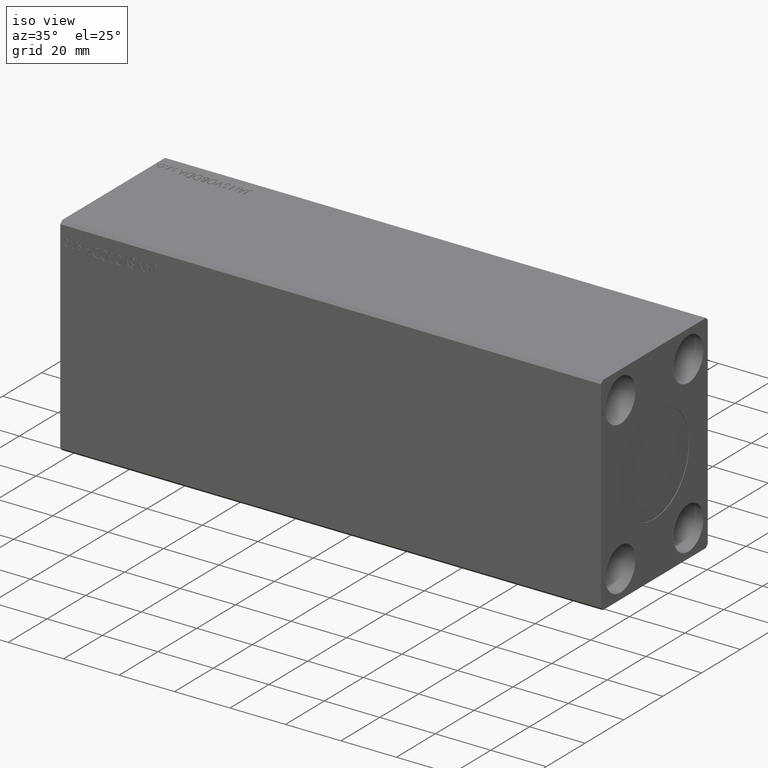
[diagram: clean part render]
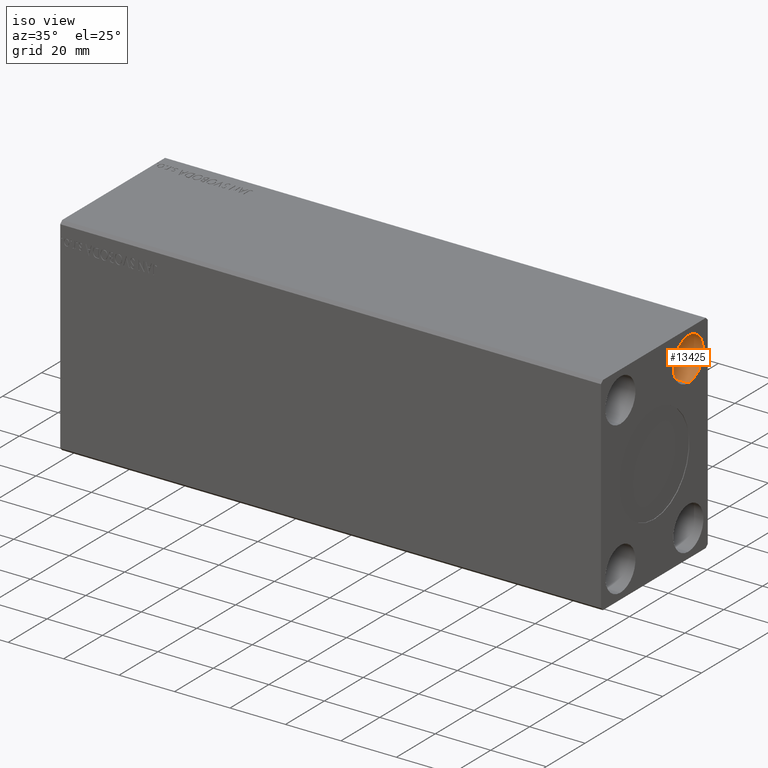
[diagram: same view with one face highlighted and labeled with its STEP entity id]
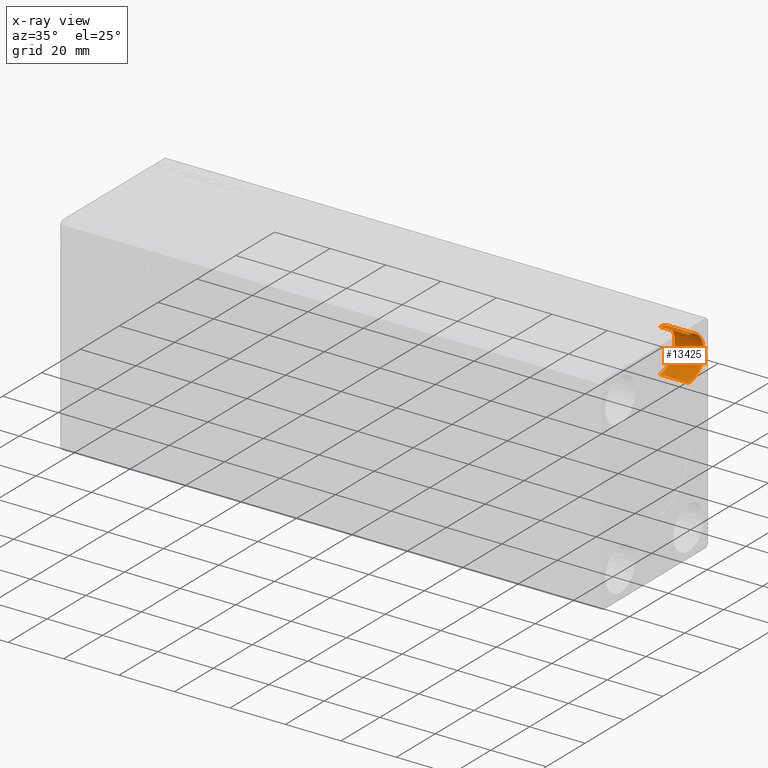
[diagram: x-ray of the same camera — body ghosted, the highlighted face saturated]
A machine part, iso view. The second image highlights one B-rep face of the part: STEP entity #13425.
The next image is the same camera in x-ray: the body ghosted, the highlighted face saturated — about 0% of this face is hidden behind the body in this view.
In plain terms, the highlighted cylindrical surface (edge-blend (fillet) strip) has radius 7.75 mm, axis along (1, -0, -0).
Its self-contained STEP definition (entity closure, byte-faithful):
#790 = VECTOR ( 'NONE', #34270, 1000.000000000000000 ) ;
#2088 = ORIENTED_EDGE ( 'NONE', *, *, #2379, .T. ) ;
#2379 = EDGE_CURVE ( 'NONE', #11078, #5587, #9123, .T. ) ;
#2627 = AXIS2_PLACEMENT_3D ( 'NONE', #11138, #24289, #34620 ) ;
#2953 = AXIS2_PLACEMENT_3D ( 'NONE', #19594, #15702, #32726 ) ;
#5459 = DIRECTION ( 'NONE',  ( 1.000000000000000000, -0.000000000000000000, -0.000000000000000000 ) ) ;
#5587 = VERTEX_POINT ( 'NONE', #31514 ) ;
#8328 = DIRECTION ( 'NONE',  ( 0.000000000000000000, 0.000000000000000000, -1.000000000000000000 ) ) ;
#8484 = EDGE_CURVE ( 'NONE', #5587, #26682, #37356, .T. ) ;
#8827 = CIRCLE ( 'NONE', #2627, 7.750000000000003553 ) ;
#9123 = LINE ( 'NONE', #28304, #20675 ) ;
#11078 = VERTEX_POINT ( 'NONE', #37678 ) ;
#11138 = CARTESIAN_POINT ( 'NONE',  ( 184.6699999999999875, 17.50000000000000000, 27.50000000000000000 ) ) ;
#11426 = CARTESIAN_POINT ( 'NONE',  ( 184.6699999999999875, 17.50000000000000000, 35.25000000000000000 ) ) ;
#11996 = CARTESIAN_POINT ( 'NONE',  ( 184.6699999999999875, 17.50000000000000000, 27.50000000000000000 ) ) ;
#13425 = ADVANCED_FACE ( 'NONE', ( #31599 ), #28154, .F. ) ;
#13585 = CARTESIAN_POINT ( 'NONE',  ( 184.6699999999999875, 17.50000000000000000, 35.25000000000000000 ) ) ;
#14028 = ORIENTED_EDGE ( 'NONE', *, *, #23595, .F. ) ;
#14537 = EDGE_LOOP ( 'NONE', ( #41887, #14028, #2088, #35478 ) ) ;
#15702 = DIRECTION ( 'NONE',  ( 1.000000000000000000, -0.000000000000000000, -0.000000000000000000 ) ) ;
#19594 = CARTESIAN_POINT ( 'NONE',  ( 195.0000000000000000, 17.50000000000000000, 27.50000000000000000 ) ) ;
#20675 = VECTOR ( 'NONE', #5459, 1000.000000000000000 ) ;
#22122 = DIRECTION ( 'NONE',  ( 1.000000000000000000, -0.000000000000000000, -0.000000000000000000 ) ) ;
#23595 = EDGE_CURVE ( 'NONE', #11078, #33115, #8827, .T. ) ;
#24289 = DIRECTION ( 'NONE',  ( 1.000000000000000000, -0.000000000000000000, -0.000000000000000000 ) ) ;
#26682 = VERTEX_POINT ( 'NONE', #37346 ) ;
#28154 = CYLINDRICAL_SURFACE ( 'NONE', #35960, 7.750000000000003553 ) ;
#28304 = CARTESIAN_POINT ( 'NONE',  ( 184.6699999999999875, 17.50000000000000000, 19.74999999999999645 ) ) ;
#31514 = CARTESIAN_POINT ( 'NONE',  ( 195.0000000000000000, 17.50000000000000000, 19.74999999999999645 ) ) ;
#31599 = FACE_OUTER_BOUND ( 'NONE', #14537, .T. ) ;
#32726 = DIRECTION ( 'NONE',  ( 0.000000000000000000, 0.000000000000000000, -1.000000000000000000 ) ) ;
#33115 = VERTEX_POINT ( 'NONE', #13585 ) ;
#34270 = DIRECTION ( 'NONE',  ( 1.000000000000000000, -0.000000000000000000, -0.000000000000000000 ) ) ;
#34620 = DIRECTION ( 'NONE',  ( 0.000000000000000000, 0.000000000000000000, -1.000000000000000000 ) ) ;
#35478 = ORIENTED_EDGE ( 'NONE', *, *, #8484, .T. ) ;
#35960 = AXIS2_PLACEMENT_3D ( 'NONE', #11996, #22122, #8328 ) ;
#37130 = EDGE_CURVE ( 'NONE', #33115, #26682, #37518, .T. ) ;
#37346 = CARTESIAN_POINT ( 'NONE',  ( 195.0000000000000000, 17.50000000000000000, 35.25000000000000000 ) ) ;
#37356 = CIRCLE ( 'NONE', #2953, 7.750000000000003553 ) ;
#37518 = LINE ( 'NONE', #11426, #790 ) ;
#37678 = CARTESIAN_POINT ( 'NONE',  ( 184.6699999999999875, 17.50000000000000000, 19.74999999999999645 ) ) ;
#41887 = ORIENTED_EDGE ( 'NONE', *, *, #37130, .F. ) ;